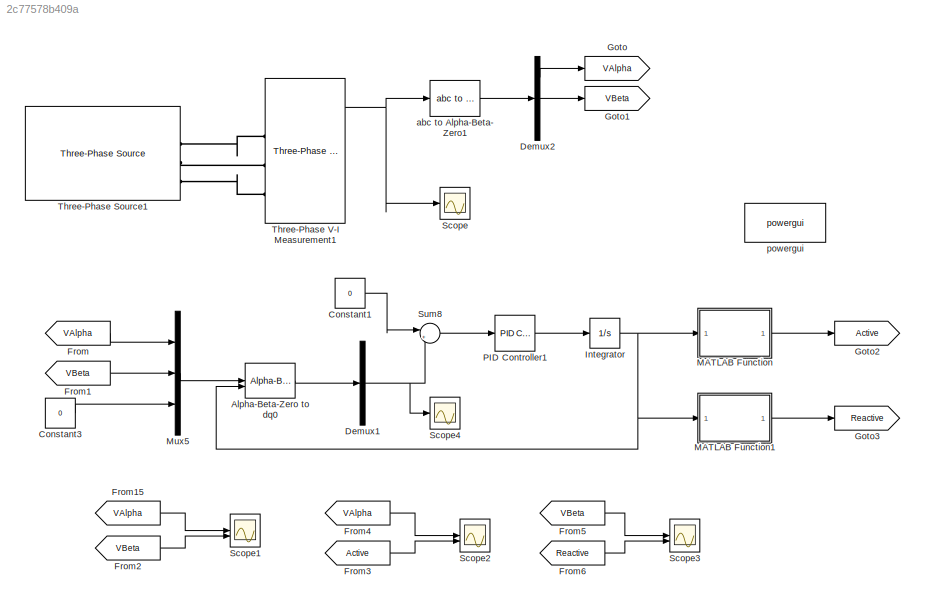
MODEL slx_2c77578b409a
KIND model
CONFIG AbsTol = auto
CONFIG EnableMultiTasking = off
CONFIG FixedStep = auto
CONFIG MaxStep = auto
CONFIG MinStep = auto
CONFIG RelTol = 1e-3
CONFIG SampleTimeConstraint = Unconstrained
CONFIG SolverName = ode23t
CONFIG StartTime = 0.0
CONFIG StopTime = 0.25
BLOCK [Reference] Alpha-Beta-Zero to dq0  REF=spsAlphaBetaZerotodq0Lib/Alpha-Beta-Zero
to dq0
  LibrarySourceBlock = sps_lib/Control/Alpha-Beta-Zero\nto dq0
  SourceBlock = spsAlphaBetaZerotodq0Lib/Alpha-Beta-Zero\nto dq0
  SourceType = Alpha-Beta-Zero to dq0 Transformation
BLOCK [Constant] Constant1
  Value = 0
BLOCK [Constant] Constant3
  Value = 0
BLOCK [Demux] Demux1
  Outputs = 3
BLOCK [Demux] Demux2
  Outputs = 3
BLOCK [From] From
  GotoTag = VAlpha
BLOCK [From] From1
  GotoTag = VBeta
BLOCK [From] From15
  GotoTag = VAlpha
BLOCK [From] From2
  GotoTag = VBeta
BLOCK [From] From3
  GotoTag = Active
BLOCK [From] From4
  GotoTag = VAlpha
BLOCK [From] From5
  GotoTag = VBeta
BLOCK [From] From6
  GotoTag = Reactive
BLOCK [Goto] Goto
  GotoTag = VAlpha
BLOCK [Goto] Goto1
  GotoTag = VBeta
BLOCK [Goto] Goto2
  GotoTag = Active
BLOCK [Goto] Goto3
  GotoTag = Reactive
BLOCK [Integrator] Integrator
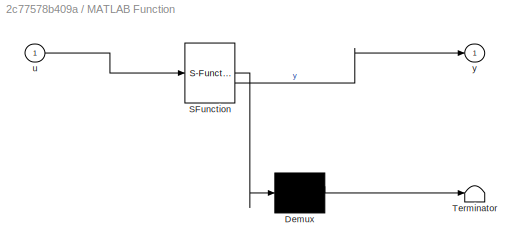
BLOCK [SubSystem] MATLAB Function
  ErrorFcn = Stateflow.Translate.translate
  LibrarySourceBlock = simulink/User-Defined\nFunctions/MATLAB Function
  PermitHierarchicalResolution = ExplicitOnly
  SFBlockType = MATLAB Function
  TreatAsAtomicUnit = on
BLOCK [Demux] MATLAB Function/ Demux 
  Outputs = 1
BLOCK [S-Function] MATLAB Function/ SFunction 
  EnableBusSupport = on
  FunctionName = sf_sfun
  PortCounts = [1 2]
  SFcnIsStateOwnerBlock = off
  SFunctionDeploymentMode = off
  Tag = Stateflow S-Function 2
BLOCK [Terminator] MATLAB Function/ Terminator 
BLOCK [Inport] MATLAB Function/u
BLOCK [Outport] MATLAB Function/y
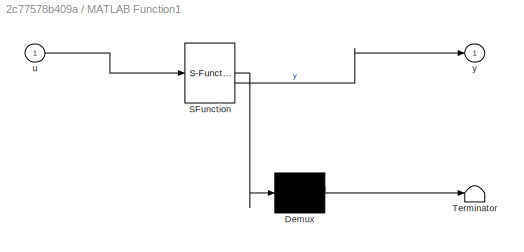
BLOCK [SubSystem] MATLAB Function1
  ErrorFcn = Stateflow.Translate.translate
  LibrarySourceBlock = simulink/User-Defined\nFunctions/MATLAB Function
  PermitHierarchicalResolution = ExplicitOnly
  SFBlockType = MATLAB Function
  TreatAsAtomicUnit = on
BLOCK [Demux] MATLAB Function1/ Demux 
  Outputs = 1
BLOCK [S-Function] MATLAB Function1/ SFunction 
  EnableBusSupport = on
  FunctionName = sf_sfun
  PortCounts = [1 2]
  SFcnIsStateOwnerBlock = off
  SFunctionDeploymentMode = off
  Tag = Stateflow S-Function 1
BLOCK [Terminator] MATLAB Function1/ Terminator 
BLOCK [Inport] MATLAB Function1/u
BLOCK [Outport] MATLAB Function1/y
BLOCK [Mux] Mux5
  DisplayOption = bar
  Inputs = 3
BLOCK [Reference] PID Controller1  REF=slpidlib/PID Controller
  LibrarySourceBlock = simulink/Continuous/PID Controller
  SourceBlock = slpidlib/PID Controller
  SourceType = PID 1dof
BLOCK [Scope] Scope
  Floating = off
  NumInputPorts = 1
  ScopeSpecificationString = Simulink.scopes.TimeScopeBlockCfg('CurrentConfiguration', extmgr.ConfigurationSet(extmgr.Configuration('Core','General UI',true),extmgr.Configuration('Core','Source UI',true),extmgr.Configuration('Sources','WiredSimulink',true),extmgr.Configuration('Visuals','Time Domain',true,'SerializedDisplays',{struct('MinYLimReal','-733.62329','MaxYLimReal','733.62329','YLabelReal','','MinYLimMag',' 0.00000',...<+1430ch>
BLOCK [Scope] Scope1
  Floating = off
  NumInputPorts = 2
  ScopeSpecificationString = Simulink.scopes.TimeScopeBlockCfg('CurrentConfiguration', extmgr.ConfigurationSet(extmgr.Configuration('Core','General UI',true),extmgr.Configuration('Core','Source UI',true),extmgr.Configuration('Sources','WiredSimulink',true,'DataLoggingVariableName','ScopeData1','DataLoggingLimitDataPoints',true,'DataLoggingMaxPoints','50000'),extmgr.Configuration('Visuals','Time Domain',true,'SerializedDisplay...<+2127ch>
BLOCK [Scope] Scope2
  Floating = off
  NumInputPorts = 2
  ScopeSpecificationString = Simulink.scopes.TimeScopeBlockCfg('CurrentConfiguration', extmgr.ConfigurationSet(extmgr.Configuration('Core','General UI',true),extmgr.Configuration('Core','Source UI',true),extmgr.Configuration('Sources','WiredSimulink',true,'DataLoggingVariableName','ScopeData2','DataLoggingLimitDataPoints',true,'DataLoggingMaxPoints','50000'),extmgr.Configuration('Visuals','Time Domain',true,'SerializedDisplay...<+2087ch>
BLOCK [Scope] Scope3
  Floating = off
  NumInputPorts = 2
  ScopeSpecificationString = Simulink.scopes.TimeScopeBlockCfg('CurrentConfiguration', extmgr.ConfigurationSet(extmgr.Configuration('Core','General UI',true),extmgr.Configuration('Core','Source UI',true),extmgr.Configuration('Sources','WiredSimulink',true,'DataLoggingVariableName','ScopeData3','DataLoggingLimitDataPoints',true,'DataLoggingMaxPoints','50000'),extmgr.Configuration('Visuals','Time Domain',true,'SerializedDisplay...<+2087ch>
BLOCK [Scope] Scope4
  Floating = off
  NumInputPorts = 1
  ScopeSpecificationString = Simulink.scopes.TimeScopeBlockCfg('CurrentConfiguration', extmgr.ConfigurationSet(extmgr.Configuration('Core','General UI',true),extmgr.Configuration('Core','Source UI',true),extmgr.Configuration('Sources','WiredSimulink',true,'DataLoggingVariableName','ScopeData4'),extmgr.Configuration('Visuals','Time Domain',true,'SerializedDisplays',{struct('MinYLimReal','-498.85123','MaxYLimReal','707.53545','...<+1381ch>
BLOCK [Sum] Sum8
  Inputs = |+-
BLOCK [Reference] Three-Phase Source1  REF=spsThreePhaseSourceLib/Three-Phase Source
  LibrarySourceBlock = sps_lib/Sources/Three-Phase Source
  NameLocation = top
  SourceBlock = spsThreePhaseSourceLib/Three-Phase Source
  SourceType = Three-Phase Source
BLOCK [Reference] Three-Phase V-I Measurement1  REF=spsThreePhaseVIMeasurementLib/Three-Phase
V-I Measurement
  LibrarySourceBlock = sps_lib/Sensors and Measurements/Three-Phase\nV-I Measurement
  SourceBlock = spsThreePhaseVIMeasurementLib/Three-Phase\nV-I Measurement
  SourceType = Three-Phase VI Measurement
BLOCK [Reference] abc to Alpha-Beta-Zero1  REF=spsabctoAlphaBetaZeroLib/abc to
Alpha-Beta-Zero
  LibrarySourceBlock = sps_lib/Control/abc to\nAlpha-Beta-Zero
  SourceBlock = spsabctoAlphaBetaZeroLib/abc to\nAlpha-Beta-Zero
  SourceType = abc to Alpha-Beta-Zero Transformation
BLOCK [Reference] powergui  REF=sps_lib/powergui
  Priority = 1
  SourceBlock = sps_lib/powergui
  SourceType = PSB option menu block
LINE Alpha-Beta-Zero to dq0:1 -> Demux1:1
LINE Constant1:1 -> Sum8:1
LINE Constant3:1 -> Mux5:3
NET Demux1:2 -> Scope4:1, Sum8:2
LINE Demux2:1 -> Goto:1
LINE Demux2:2 -> Goto1:1
LINE From15:1 -> Scope1:1
LINE From1:1 -> Mux5:2
LINE From2:1 -> Scope1:2
LINE From3:1 -> Scope2:2
LINE From4:1 -> Scope2:1
LINE From5:1 -> Scope3:1
LINE From6:1 -> Scope3:2
LINE From:1 -> Mux5:1
NET Integrator:1 -> Alpha-Beta-Zero to dq0:2, MATLAB Function1:1, MATLAB Function:1
LINE MATLAB Function1:1 -> Goto3:1
LINE MATLAB Function:1 -> Goto2:1
LINE Mux5:1 -> Alpha-Beta-Zero to dq0:1
LINE PID Controller1:1 -> Integrator:1
LINE Sum8:1 -> PID Controller1:1
NET Three-Phase V-I Measurement1:1 -> Scope:1, abc to Alpha-Beta-Zero1:1
LINE abc to Alpha-Beta-Zero1:1 -> Demux2:1
PLINE Three-Phase Source1:RConn1 -- Three-Phase V-I Measurement1:LConn1
PLINE Three-Phase Source1:RConn2 -- Three-Phase V-I Measurement1:LConn2
PLINE Three-Phase Source1:RConn3 -- Three-Phase V-I Measurement1:LConn3
note: NET lines group one-source signal fan-out (src -> all destinations, sorted); 1:1 wires keep LINE
CHART MATLAB Function states=1 transitions=1
  STATE_LABEL 'eML_blk_kernel()'
  STATE_LABEL 'SCRIPT:\nfunction y = fcn(u)\n\ny = -sin(u(1));\n'
CHART MATLAB Function1 states=1 transitions=1
  STATE_LABEL 'eML_blk_kernel()'
  STATE_LABEL 'SCRIPT:\nfunction y = fcn(u)\n\ny = cos(u(1));\n'
CHART  states=0 transitions=0
CHART  states=0 transitions=0
